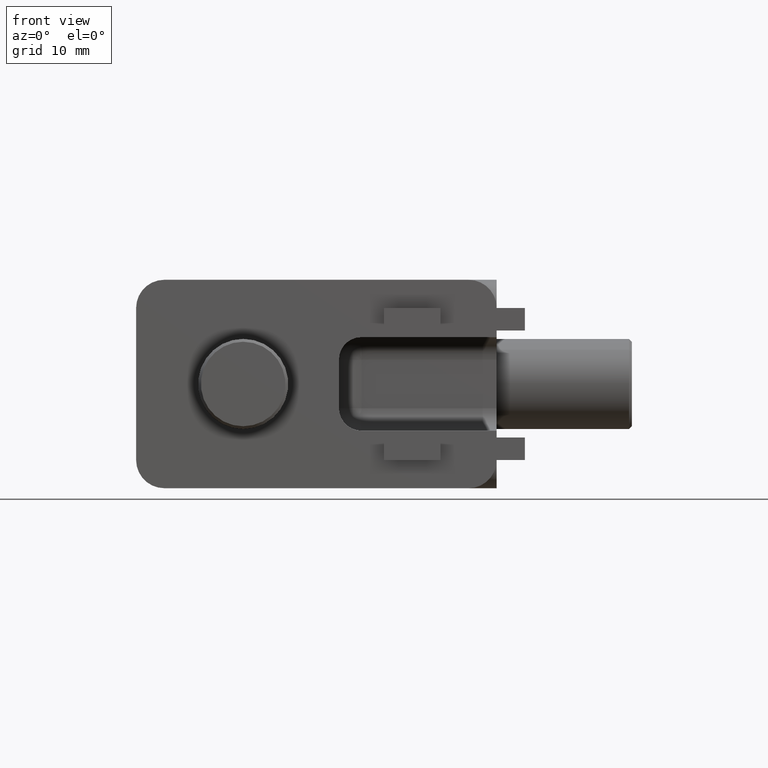
[diagram: clean part render]
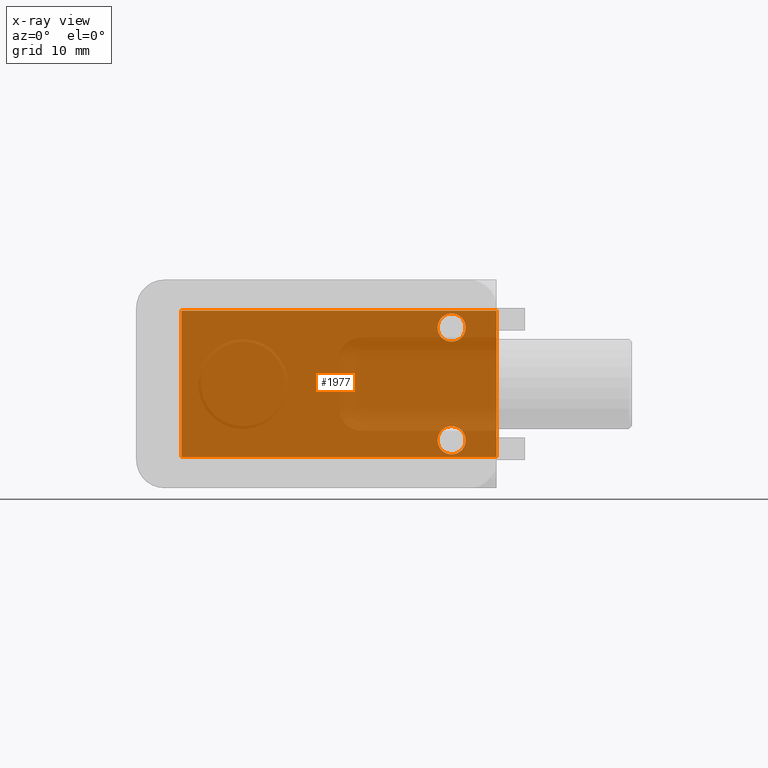
[diagram: x-ray — body ghosted, one internal face saturated and labeled with its STEP entity id]
A machine part, front view, then the same camera in x-ray: the body is ghosted and one INTERNAL B-rep face — a face not visible from any outside direction — is saturated and labeled: STEP entity #1977.
In plain terms, the highlighted planar face has unit normal (-0, 1, 0).
Its self-contained STEP definition (entity closure, byte-faithful):
#44=FACE_BOUND('',#332,.T.);
#45=FACE_BOUND('',#333,.T.);
#92=PLANE('',#2184);
#204=FACE_OUTER_BOUND('',#331,.T.);
#331=EDGE_LOOP('',(#1671,#1672,#1673,#1674));
#332=EDGE_LOOP('',(#1675,#1676));
#333=EDGE_LOOP('',(#1677,#1678));
#495=LINE('',#3428,#669);
#496=LINE('',#3430,#670);
#497=LINE('',#3432,#671);
#498=LINE('',#3433,#672);
#669=VECTOR('',#2660,1000.);
#670=VECTOR('',#2661,1000.);
#671=VECTOR('',#2662,1000.);
#672=VECTOR('',#2663,1000.);
#786=CIRCLE('',#2169,1.25);
#789=CIRCLE('',#2172,1.25);
#790=CIRCLE('',#2174,1.25);
#793=CIRCLE('',#2177,1.25);
#942=VERTEX_POINT('',#3310);
#943=VERTEX_POINT('',#3311);
#946=VERTEX_POINT('',#3320);
#947=VERTEX_POINT('',#3321);
#958=VERTEX_POINT('',#3426);
#959=VERTEX_POINT('',#3427);
#960=VERTEX_POINT('',#3429);
#961=VERTEX_POINT('',#3431);
#1193=EDGE_CURVE('',#942,#943,#786,.T.);
#1197=EDGE_CURVE('',#943,#942,#789,.T.);
#1198=EDGE_CURVE('',#946,#947,#790,.T.);
#1202=EDGE_CURVE('',#947,#946,#793,.T.);
#1213=EDGE_CURVE('',#958,#959,#495,.T.);
#1214=EDGE_CURVE('',#960,#959,#496,.T.);
#1215=EDGE_CURVE('',#961,#960,#497,.T.);
#1216=EDGE_CURVE('',#961,#958,#498,.T.);
#1671=ORIENTED_EDGE('',*,*,#1213,.T.);
#1672=ORIENTED_EDGE('',*,*,#1214,.F.);
#1673=ORIENTED_EDGE('',*,*,#1215,.F.);
#1674=ORIENTED_EDGE('',*,*,#1216,.T.);
#1675=ORIENTED_EDGE('',*,*,#1193,.F.);
#1676=ORIENTED_EDGE('',*,*,#1197,.F.);
#1677=ORIENTED_EDGE('',*,*,#1198,.F.);
#1678=ORIENTED_EDGE('',*,*,#1202,.F.);
#1977=ADVANCED_FACE('',(#204,#44,#45),#92,.F.);
#2169=AXIS2_PLACEMENT_3D('',#3312,#2624,#2625);
#2172=AXIS2_PLACEMENT_3D('',#3318,#2631,#2632);
#2174=AXIS2_PLACEMENT_3D('',#3322,#2635,#2636);
#2177=AXIS2_PLACEMENT_3D('',#3328,#2642,#2643);
#2184=AXIS2_PLACEMENT_3D('',#3425,#2658,#2659);
#2624=DIRECTION('center_axis',(1.23908819712629E-16,-1.,0.));
#2625=DIRECTION('ref_axis',(-1.,-1.23908819712629E-16,0.));
#2631=DIRECTION('center_axis',(1.23908819712629E-16,-1.,0.));
#2632=DIRECTION('ref_axis',(-1.,-1.23908819712629E-16,0.));
#2635=DIRECTION('center_axis',(1.23908819712629E-16,-1.,0.));
#2636=DIRECTION('ref_axis',(-1.,-1.23908819712629E-16,0.));
#2642=DIRECTION('center_axis',(1.23908819712629E-16,-1.,0.));
#2643=DIRECTION('ref_axis',(-1.,-1.23908819712629E-16,0.));
#2658=DIRECTION('center_axis',(-1.23908819712629E-16,1.,0.));
#2659=DIRECTION('ref_axis',(-1.,-1.23908819712629E-16,0.));
#2660=DIRECTION('',(0.,0.,-1.));
#2661=DIRECTION('',(-1.,-1.23908819712629E-16,4.52521133549632E-32));
#2662=DIRECTION('',(0.,0.,-1.));
#2663=DIRECTION('',(-1.,0.,0.));
#3310=CARTESIAN_POINT('',(11.4748569721971,15.5522856449551,5.));
#3311=CARTESIAN_POINT('',(13.9748569721971,15.5522856449551,5.));
#3312=CARTESIAN_POINT('Origin',(12.7248569721971,15.5522856449551,5.));
#3318=CARTESIAN_POINT('Origin',(12.7248569721971,15.5522856449551,5.));
#3320=CARTESIAN_POINT('',(11.4748569721971,15.5522856449551,-5.));
#3321=CARTESIAN_POINT('',(13.9748569721971,15.5522856449551,-5.));
#3322=CARTESIAN_POINT('Origin',(12.7248569721971,15.5522856449551,-5.));
#3328=CARTESIAN_POINT('Origin',(12.7248569721971,15.5522856449551,-5.));
#3425=CARTESIAN_POINT('Origin',(16.7248569721971,15.5522856449551,500000.));
#3426=CARTESIAN_POINT('',(-11.2751430278029,15.5522856449551,6.50000000013051));
#3427=CARTESIAN_POINT('',(-11.2751430278029,15.5522856449551,-6.50000000013051));
#3428=CARTESIAN_POINT('',(-11.2751430278029,15.5522856449551,500000.));
#3429=CARTESIAN_POINT('',(16.7248569721971,15.5522856449551,-6.50000000013051));
#3430=CARTESIAN_POINT('',(16.7248569721971,15.5522856449551,-6.50000000001683));
#3431=CARTESIAN_POINT('',(16.7248569721971,15.5522856449551,6.50000000013051));
#3432=CARTESIAN_POINT('',(16.7248569721971,15.5522856449551,500000.));
#3433=CARTESIAN_POINT('',(19.2248569721971,15.5522856449551,6.5));